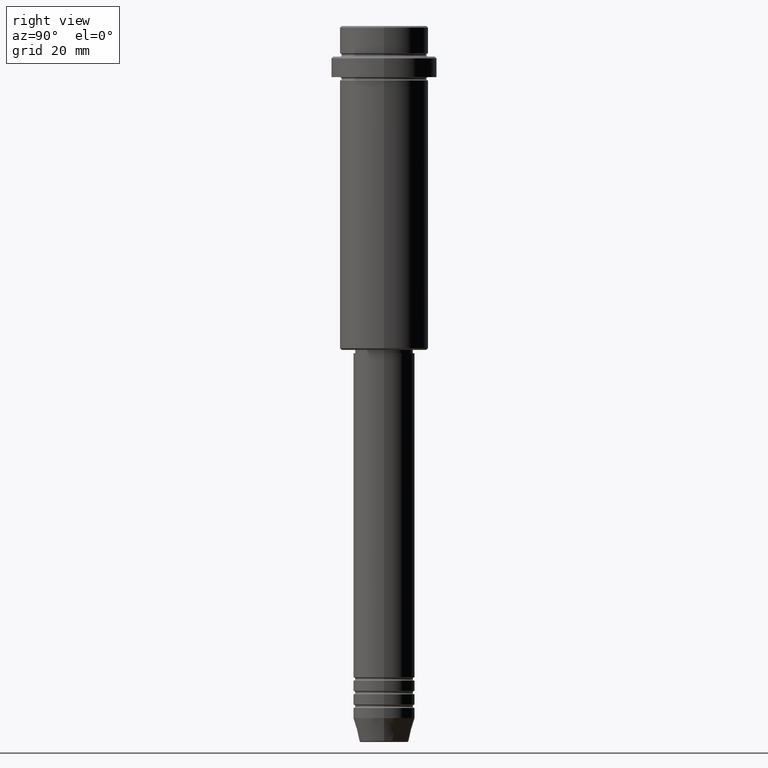
[diagram: clean part render]
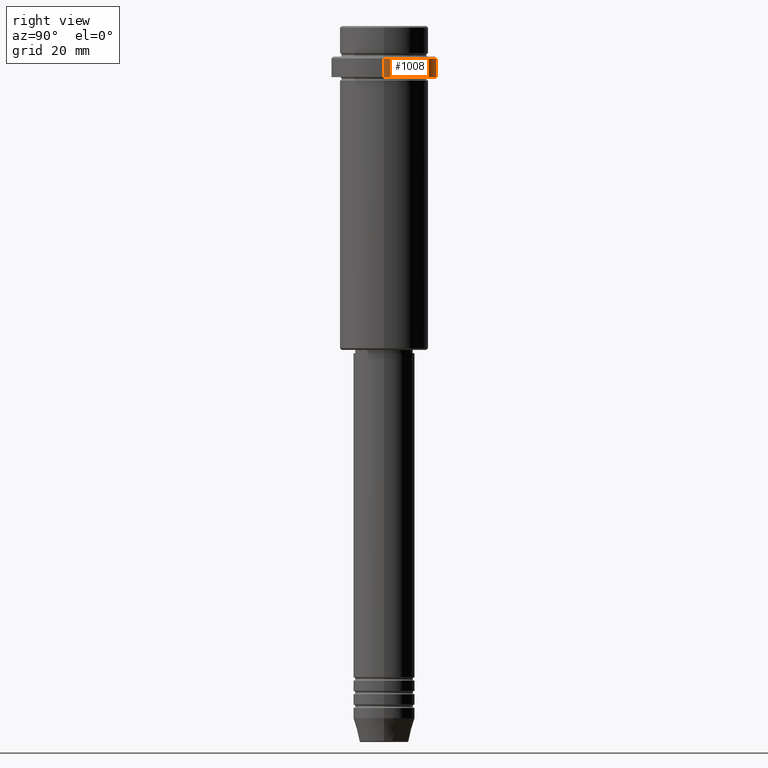
[diagram: same view with one face highlighted and labeled with its STEP entity id]
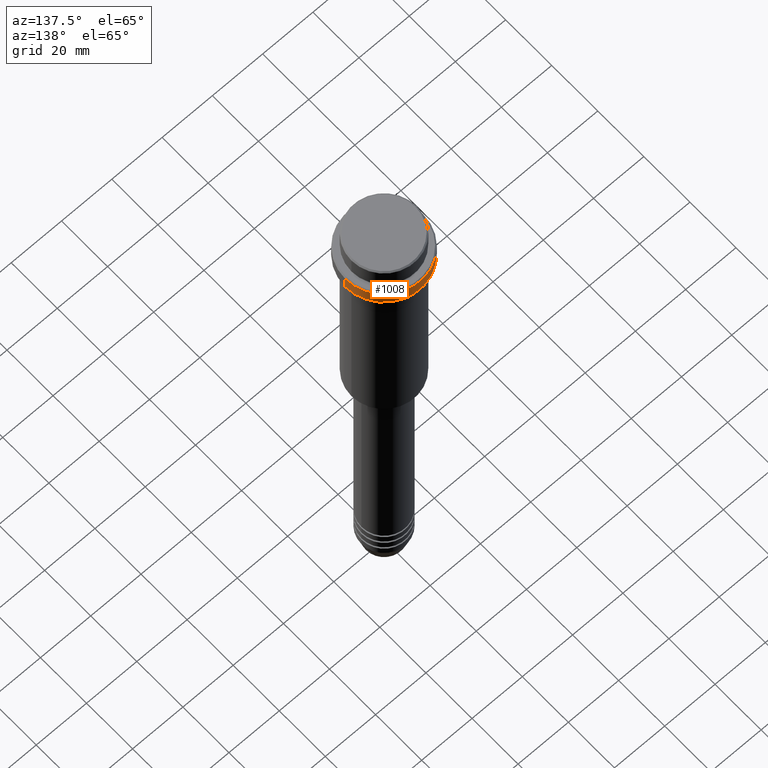
[diagram: same view with one face highlighted and labeled with its STEP entity id]
A machine part, right view. The second image highlights one B-rep face of the part: STEP entity #1008.
A second angle (auxiliary view) of the same face is appended — the face is thin or edge-on in the first view.
In plain terms, the highlighted cylindrical surface (partial cylindrical patch) has radius 15.5 mm, axis along (-0, -0, 1).
Its self-contained STEP definition (entity closure, byte-faithful):
#30 = VERTEX_POINT ( 'NONE', #1147 ) ;
#63 = DIRECTION ( 'NONE',  ( -0.000000000000000000, -0.000000000000000000, 1.000000000000000000 ) ) ;
#70 = LINE ( 'NONE', #1385, #1227 ) ;
#163 = DIRECTION ( 'NONE',  ( 1.000000000000000000, 0.000000000000000000, 0.000000000000000000 ) ) ;
#185 = CARTESIAN_POINT ( 'NONE',  ( -15.50000000000000000, 1.898202538678397557E-15, -9.500000000000014211 ) ) ;
#227 = CARTESIAN_POINT ( 'NONE',  ( 0.000000000000000000, 0.000000000000000000, -15.00000000000000178 ) ) ;
#251 = CARTESIAN_POINT ( 'NONE',  ( 15.50000000000000000, 0.000000000000000000, -15.00000000000000178 ) ) ;
#340 = EDGE_CURVE ( 'NONE', #868, #30, #783, .T. ) ;
#373 = CARTESIAN_POINT ( 'NONE',  ( 0.000000000000000000, 0.000000000000000000, -9.500000000000014211 ) ) ;
#400 = DIRECTION ( 'NONE',  ( -0.000000000000000000, -0.000000000000000000, 1.000000000000000000 ) ) ;
#548 = VERTEX_POINT ( 'NONE', #825 ) ;
#555 = ORIENTED_EDGE ( 'NONE', *, *, #992, .F. ) ;
#587 = EDGE_CURVE ( 'NONE', #1256, #548, #1013, .T. ) ;
#596 = CARTESIAN_POINT ( 'NONE',  ( -15.50000000000000000, 1.898202538678397557E-15, 0.000000000000000000 ) ) ;
#773 = EDGE_LOOP ( 'NONE', ( #1383, #873, #881, #555 ) ) ;
#783 = CIRCLE ( 'NONE', #1175, 15.50000000000000000 ) ;
#794 = DIRECTION ( 'NONE',  ( 0.000000000000000000, 0.000000000000000000, -1.000000000000000000 ) ) ;
#808 = AXIS2_PLACEMENT_3D ( 'NONE', #227, #1077, #1415 ) ;
#825 = CARTESIAN_POINT ( 'NONE',  ( -15.50000000000000000, 1.898202538678397557E-15, -15.00000000000000178 ) ) ;
#829 = LINE ( 'NONE', #596, #1037 ) ;
#855 = FACE_OUTER_BOUND ( 'NONE', #773, .T. ) ;
#868 = VERTEX_POINT ( 'NONE', #185 ) ;
#873 = ORIENTED_EDGE ( 'NONE', *, *, #1343, .T. ) ;
#874 = CYLINDRICAL_SURFACE ( 'NONE', #1203, 15.50000000000000000 ) ;
#881 = ORIENTED_EDGE ( 'NONE', *, *, #340, .T. ) ;
#883 = CARTESIAN_POINT ( 'NONE',  ( 0.000000000000000000, 0.000000000000000000, 0.000000000000000000 ) ) ;
#992 = EDGE_CURVE ( 'NONE', #1256, #30, #70, .T. ) ;
#1008 = ADVANCED_FACE ( 'NONE', ( #855 ), #874, .T. ) ;
#1013 = CIRCLE ( 'NONE', #808, 15.50000000000000000 ) ;
#1037 = VECTOR ( 'NONE', #63, 1000.000000000000000 ) ;
#1077 = DIRECTION ( 'NONE',  ( -0.000000000000000000, -0.000000000000000000, 1.000000000000000000 ) ) ;
#1084 = DIRECTION ( 'NONE',  ( 1.000000000000000000, 0.000000000000000000, 0.000000000000000000 ) ) ;
#1147 = CARTESIAN_POINT ( 'NONE',  ( 15.50000000000000000, 0.000000000000000000, -9.500000000000014211 ) ) ;
#1175 = AXIS2_PLACEMENT_3D ( 'NONE', #373, #794, #163 ) ;
#1190 = DIRECTION ( 'NONE',  ( -0.000000000000000000, -0.000000000000000000, 1.000000000000000000 ) ) ;
#1203 = AXIS2_PLACEMENT_3D ( 'NONE', #883, #1190, #1084 ) ;
#1227 = VECTOR ( 'NONE', #400, 1000.000000000000000 ) ;
#1256 = VERTEX_POINT ( 'NONE', #251 ) ;
#1343 = EDGE_CURVE ( 'NONE', #548, #868, #829, .T. ) ;
#1383 = ORIENTED_EDGE ( 'NONE', *, *, #587, .T. ) ;
#1385 = CARTESIAN_POINT ( 'NONE',  ( 15.50000000000000000, 0.000000000000000000, 0.000000000000000000 ) ) ;
#1415 = DIRECTION ( 'NONE',  ( 1.000000000000000000, 0.000000000000000000, 0.000000000000000000 ) ) ;